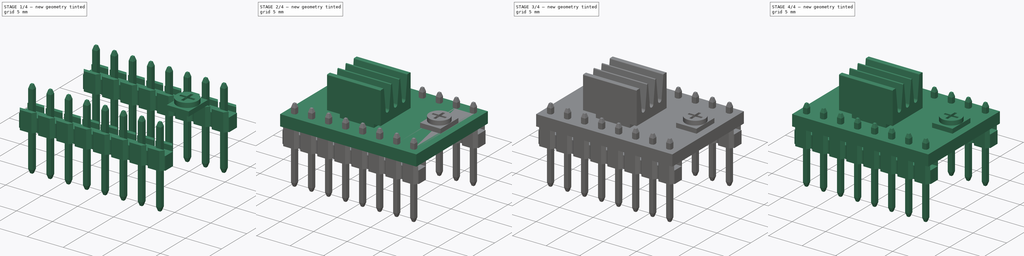
[diagram: build sequence overview — one tinted view per stage of 4, left to right]
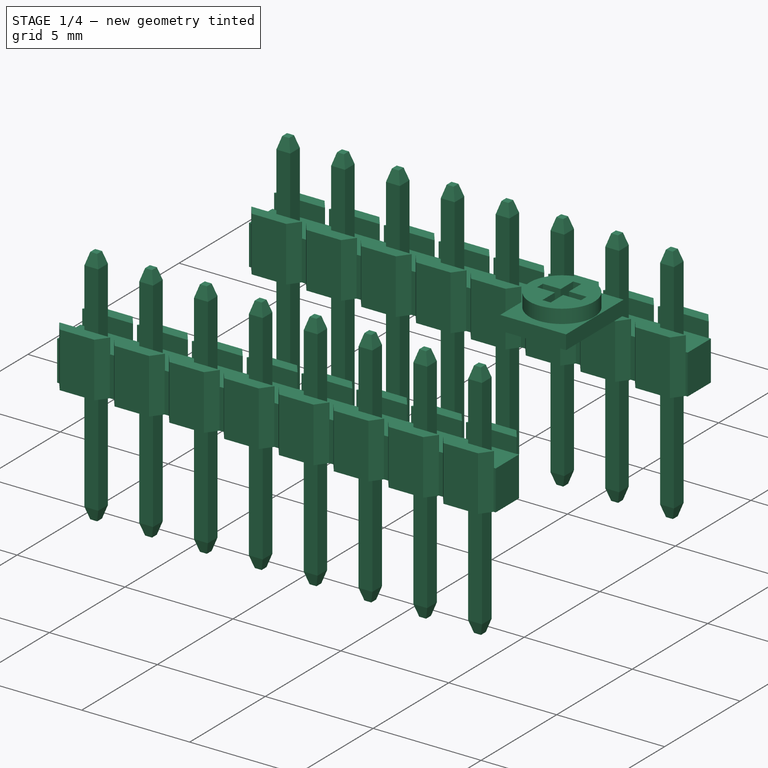
[diagram: stage 1 of 4 — iso view after this stage's code; geometry added in this stage tinted green]
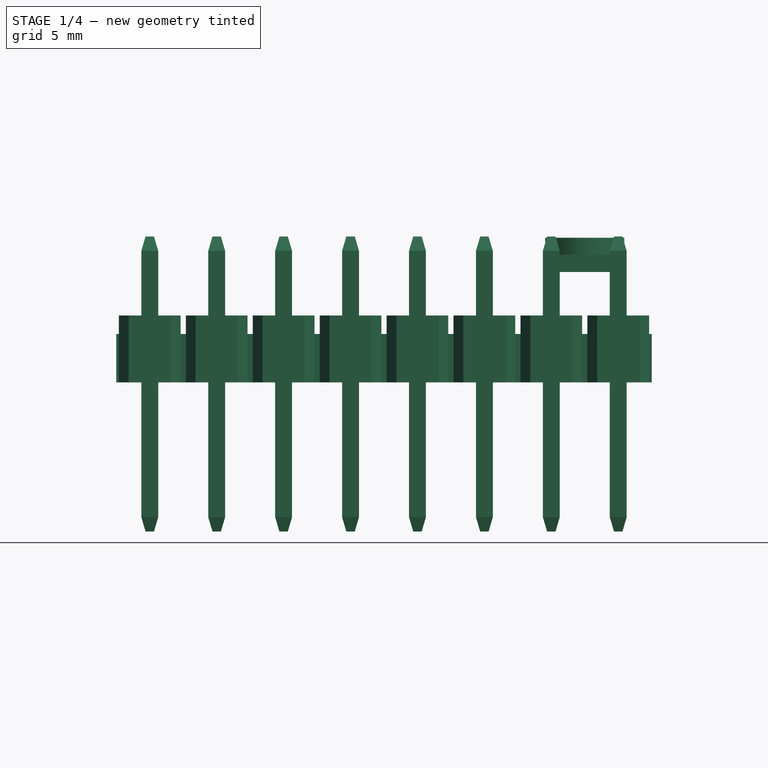
[diagram: stage 1 of 4 — front view after this stage's code; geometry added in this stage tinted green]
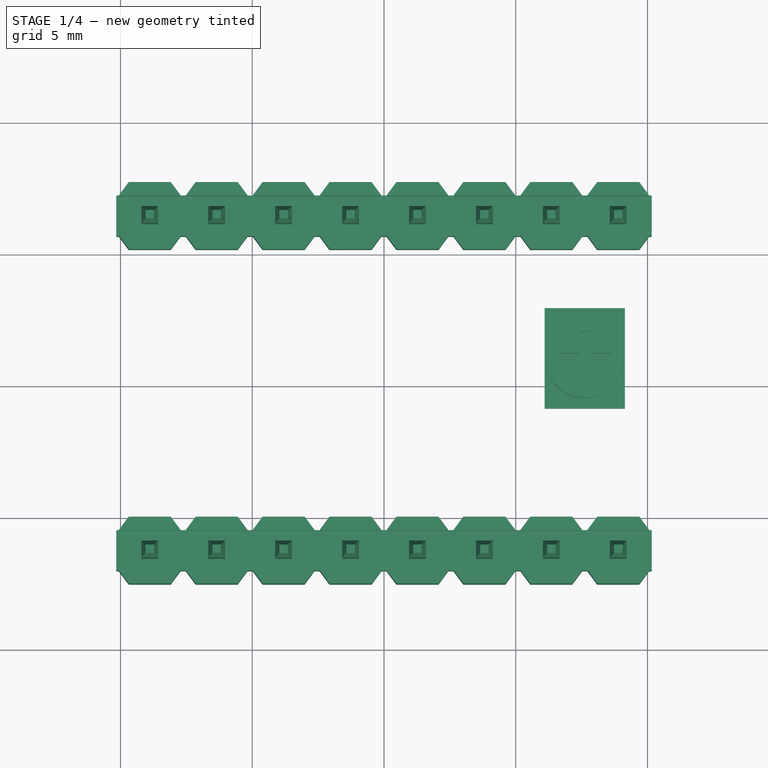
[diagram: stage 1 of 4 — top view after this stage's code; geometry added in this stage tinted green]
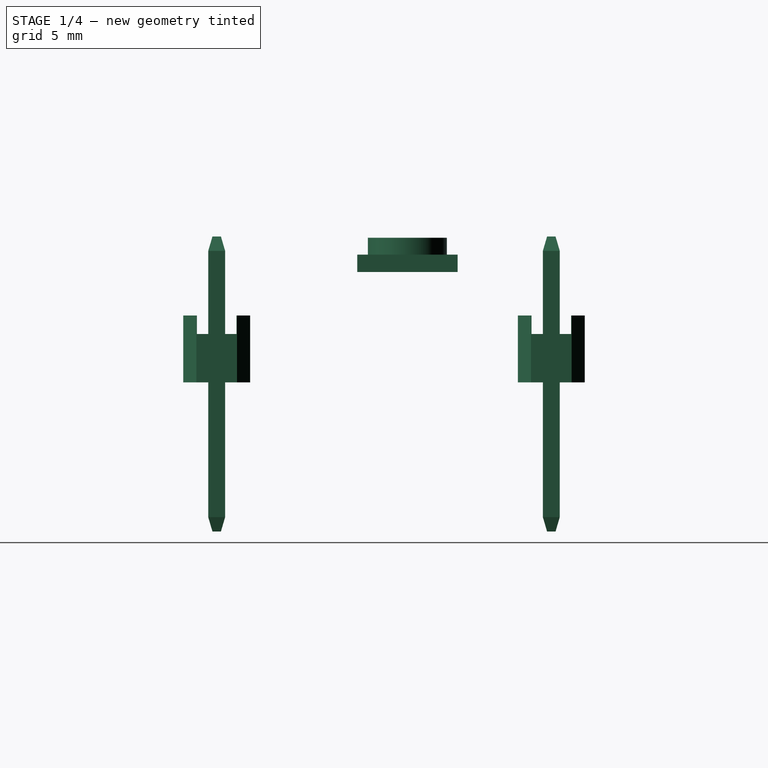
[diagram: stage 1 of 4 — right view after this stage's code; geometry added in this stage tinted green]
FCSTD DOCUMENT  (FreeCAD 0.19R17798 (Git))
Label: pololu-A4988
License: CC-BY 3.0
LicenseURL: http://creativecommons.org/licenses/by/3.0/
objects: Sketcher::SketchObject×6, Part::Feature×5, Part::Compound×5, PartDesign::Pad×4, App::DocumentObjectGroup×3, PartDesign::Pocket×2, PartDesign::LinearPattern×1
note: 29 computed .brp shape members not serialized (recipe doc carries the construction recipe); baked Part::Feature solids carry a one-line shape summary decoded from their .brp

FEATURE [App::DocumentObjectGroup] Group002  label="potentiometer-src"
  Group = -> [Pad002002,Pad002003,Pocket001,Compound]
FEATURE [Part::Compound] Compound001  label="pololu-potentiometer001"
  Placement = pos=(7.62,0.889,1.651) rot=(0,0,1;0rad)
FEATURE [Part::Feature] Pad002002002  label="heat-sink-8x6x5mm001"
  Placement = pos=(-1.0165,-1.7757,2.54) rot=(0.57735,0.57735,0.57735;2.0944rad)
  shape: bbox 8 x 6.38 x 4.83 mm, 22 faces (baked)
FEATURE [Part::Compound] Compound002  label="1x8-male-pin-header"
  Placement = pos=(-8.89,-6.35,0) rot=(1,0,0;3.14159rad)
FEATURE [Part::Compound] Compound003  label="1x8-male-pin-header001"
  Placement = pos=(-8.89,6.35,0) rot=(1,0,0;3.14159rad)
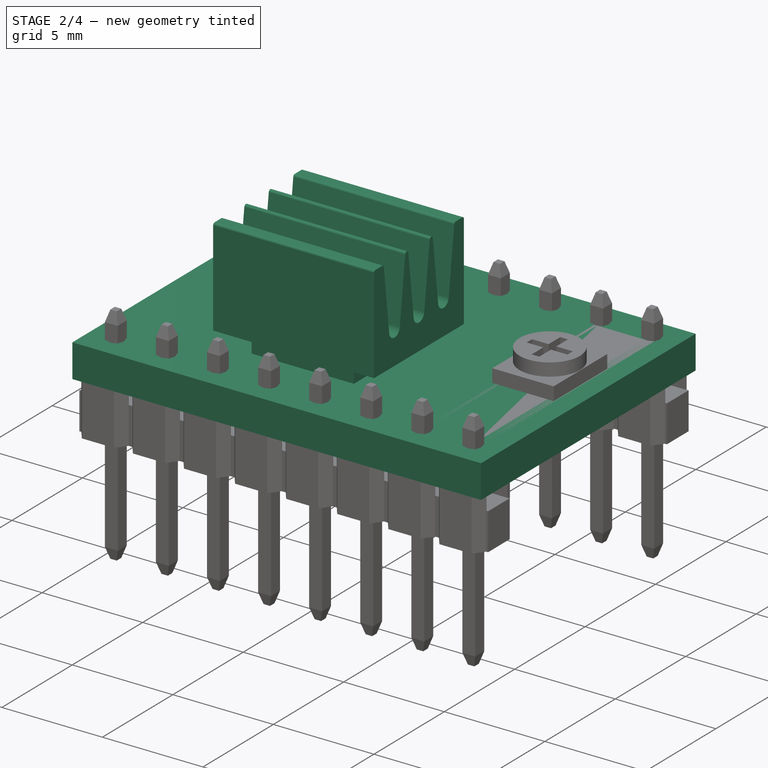
[diagram: stage 2 of 4 — iso view after this stage's code; geometry added in this stage tinted green]
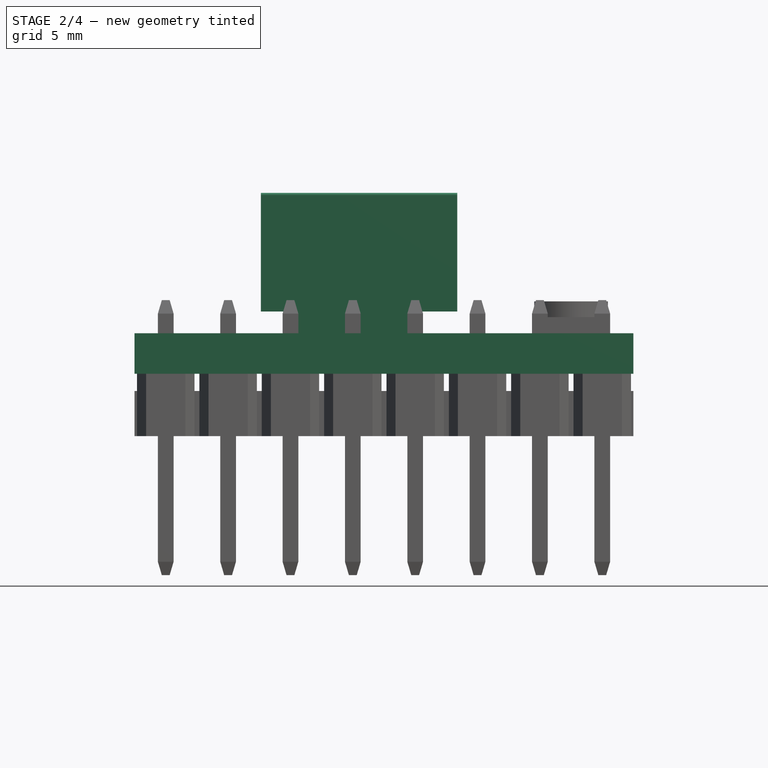
[diagram: stage 2 of 4 — front view after this stage's code; geometry added in this stage tinted green]
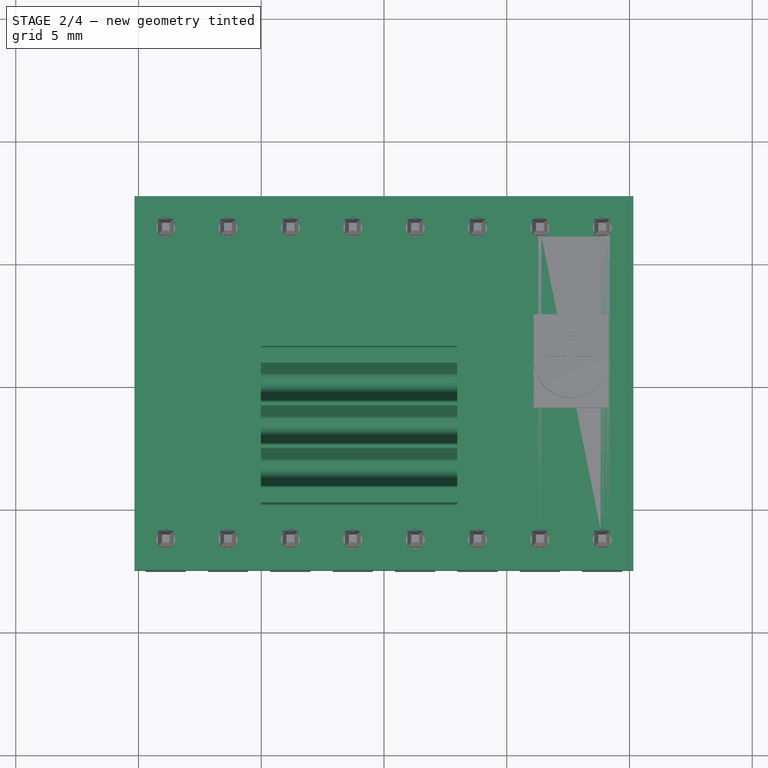
[diagram: stage 2 of 4 — top view after this stage's code; geometry added in this stage tinted green]
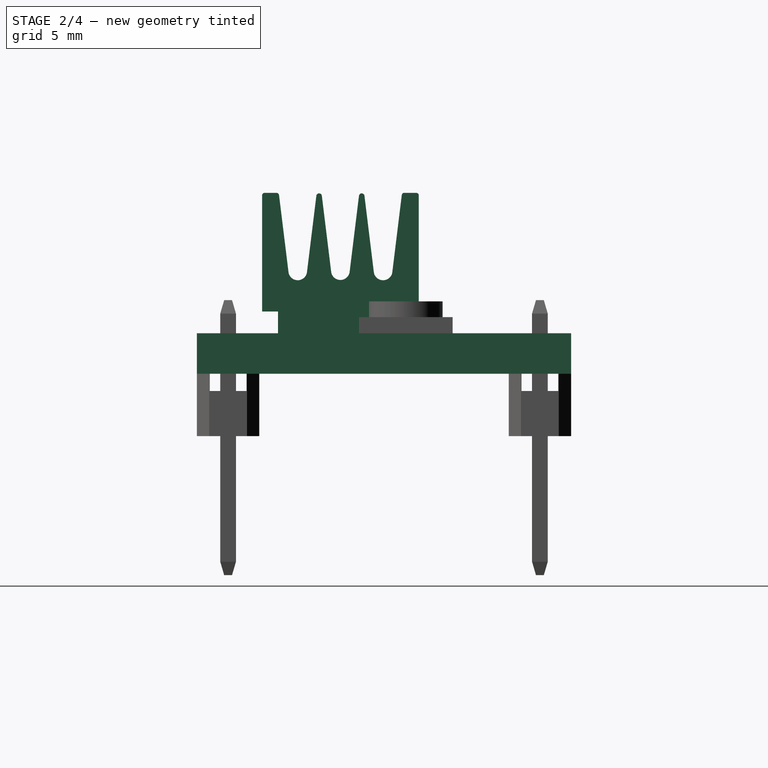
[diagram: stage 2 of 4 — right view after this stage's code; geometry added in this stage tinted green]
FEATURE [Sketcher::SketchObject] Sketch005  label="potentiometer-screw-main-sketch"
  MapMode = 5
  Placement = pos=(0,0,0.66) rot=(0,0,1;0rad)
  sketch-geometry (1):
    g0: Circle CenterX=0 CenterY=0 CenterZ=0 NormalX=0 NormalY=0 NormalZ=1 AngleXU=0 Radius=1.5
  constraints (2):
    c: Coincident(g0,g-1)
    c: Radius(g0) = 1.5
FEATURE [PartDesign::Pad] Pad002003  label="potentiometer-screw-main"
  Length = 0.64
  Length2 = 100
  Placement = pos=(0,0,0.66) rot=(0,0,1;0rad)
  Profile = -> Sketch005
  Type = 0
FEATURE [Part::Feature] Pad002002001  label="potentiometer-base001"
  shape: bbox 3.048 x 3.81 x 0.66 mm, 6 faces (baked)
FEATURE [Part::Feature] Pocket001001  label="potentiometer-screw-cross001"
  Placement = pos=(0,0,0.66) rot=(0,0,1;0rad)
  shape: bbox 3 x 3 x 0.64 mm, 15 faces (baked)
FEATURE [Part::Compound] Compound  label="pololu-potentiometer"
  Links = -> [Pad002002001,Pocket001001]
  Placement = pos=(7.62,0.889,1.651) rot=(0,0,1;0rad)
FEATURE [Part::Compound] Compound004  label="pololu-A500"
  Links = -> [LinearPattern001,Pad002001,Compound001,Pad002002002,Compound002,Compound003]
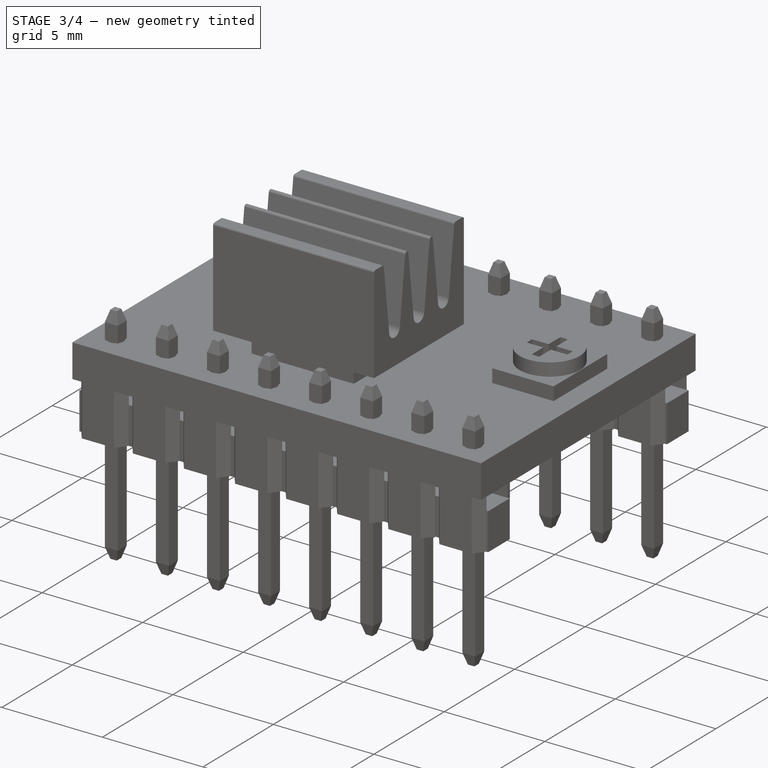
[diagram: stage 3 of 4 — iso view after this stage's code; geometry added in this stage tinted green]
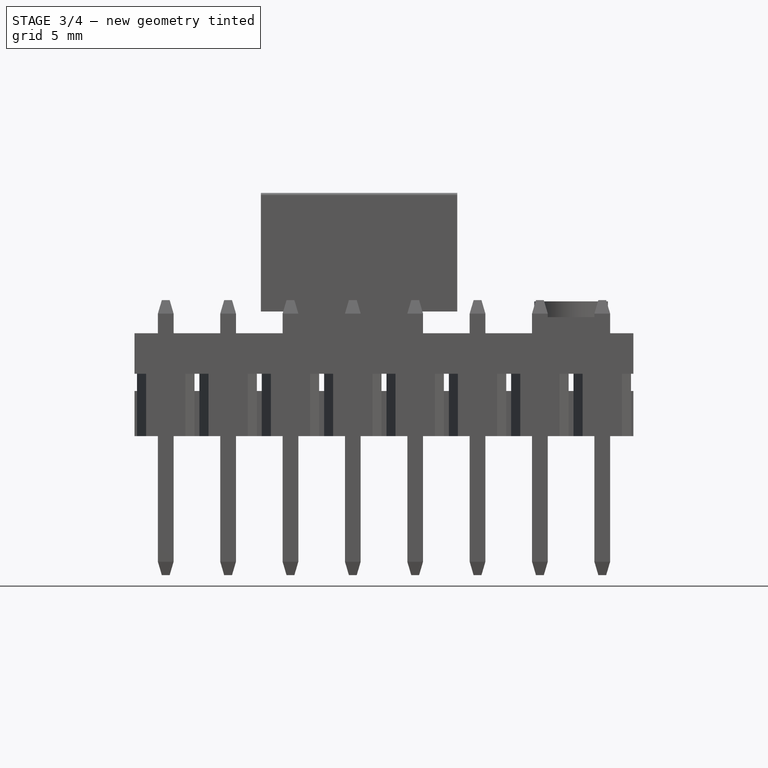
[diagram: stage 3 of 4 — front view after this stage's code; geometry added in this stage tinted green]
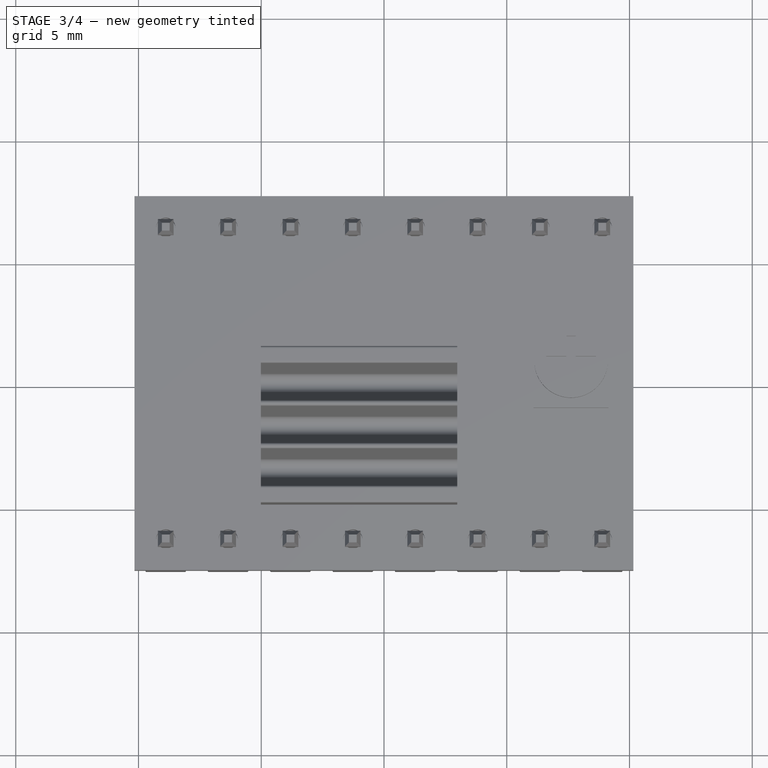
[diagram: stage 3 of 4 — top view after this stage's code; geometry added in this stage tinted green]
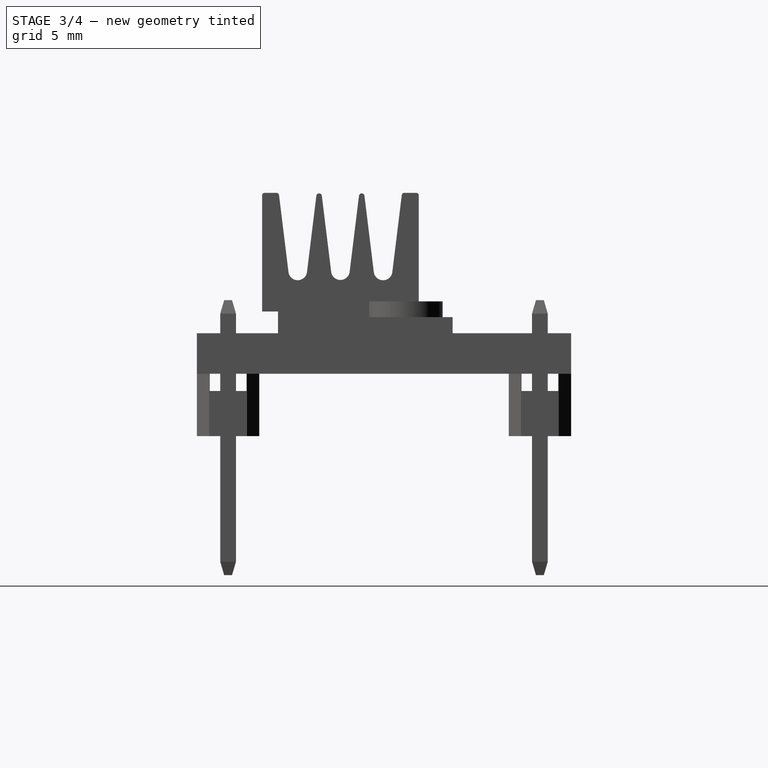
[diagram: stage 3 of 4 — right view after this stage's code; geometry added in this stage tinted green]
FEATURE [App::DocumentObjectGroup] Group  label="pololu-pcb-src"
  Group = -> [Pad001,Pocket,LinearPattern]
FEATURE [Part::Feature] LinearPattern001  label="pololu-pcb"
  shape: bbox 20.32 x 15.24 x 1.65 mm, 22 faces (baked)
FEATURE [Sketcher::SketchObject] Sketch003  label="drv-chip-sketch"
  MapMode = 5
  Placement = pos=(-1.016,-1.778,1.651) rot=(0,0,1;0rad)
  sketch-geometry (4):
    g0: LineSegment StartX=-2.54 StartY=2.54 StartZ=0 EndX=2.54 EndY=2.54 EndZ=0
    g1: LineSegment StartX=2.54 StartY=2.54 StartZ=0 EndX=2.54 EndY=-2.54 EndZ=0
    g2: LineSegment StartX=2.54 StartY=-2.54 StartZ=0 EndX=-2.54 EndY=-2.54 EndZ=0
    g3: LineSegment StartX=-2.54 StartY=-2.54 StartZ=0 EndX=-2.54 EndY=2.54 EndZ=0
  constraints (11):
    c: Coincident(g0,g1)
    c: Coincident(g1,g2)
    c: Coincident(g2,g3)
    c: Coincident(g3,g0)
    c: Horizontal(g0)
    c: Horizontal(g2)
    c: Vertical(g1)
    c: Vertical(g3)
    c: Symmetric(g0,g1,g-1)
    c: Equal(g3,g0)
    c: DistanceX(g0) = 5.08
FEATURE [PartDesign::Pad] Pad002  label="drv-chip"
  Length = 0.89
  Length2 = 100
  Placement = pos=(-1.016,-1.778,1.651) rot=(0,0,1;0rad)
  Profile = -> Sketch003
  Type = 0
FEATURE [App::DocumentObjectGroup] Group001  label="drv-chip-src"
  Group = -> [Pad002]
FEATURE [Part::Feature] Pad002001  label="drv-chip001"
  Placement = pos=(-1.016,-1.778,1.651) rot=(0,0,1;0rad)
  shape: bbox 5.08 x 5.08 x 0.89 mm, 6 faces (baked)
FEATURE [Sketcher::SketchObject] Sketch004  label="potentiometer-base-sketch"
  MapMode = 5
  sketch-geometry (4):
    g0: LineSegment StartX=-1.524 StartY=1.905 StartZ=0 EndX=1.524 EndY=1.905 EndZ=0
    g1: LineSegment StartX=1.524 StartY=1.905 StartZ=0 EndX=1.524 EndY=-1.905 EndZ=0
    g2: LineSegment StartX=1.524 StartY=-1.905 StartZ=0 EndX=-1.524 EndY=-1.905 EndZ=0
    g3: LineSegment StartX=-1.524 StartY=-1.905 StartZ=0 EndX=-1.524 EndY=1.905 EndZ=0
  constraints (11):
    c: Coincident(g0,g1)
    c: Coincident(g1,g2)
    c: Coincident(g2,g3)
    c: Coincident(g3,g0)
    c: Horizontal(g0)
    c: Horizontal(g2)
    c: Vertical(g1)
    c: Vertical(g3)
    c: Symmetric(g0,g1,g-1)
    c: DistanceX(g2) = -3.048
    c: DistanceY(g3) = 3.81
FEATURE [PartDesign::Pad] Pad002002  label="potentiometer-base"
  Length = 0.66
  Length2 = 100
  Profile = -> Sketch004
  Type = 0
FEATURE [Sketcher::SketchObject] Sketch006  label="potentiometer-screw-cross-sketch"
  MapMode = 5
  Placement = pos=(0,0,1.3) rot=(0,0,1;0rad)
  Support = -> [Pad002003]
  sketch-geometry (12):
    g0: LineSegment StartX=0.19 StartY=1.015 StartZ=0 EndX=-0.19 EndY=1.015 EndZ=0
    g1: LineSegment StartX=-0.19 StartY=1.015 StartZ=0 EndX=-0.19 EndY=0.19 EndZ=0
    g2: LineSegment StartX=-0.19 StartY=0.19 StartZ=0 EndX=-1.015 EndY=0.19 EndZ=0
    g3: LineSegment StartX=-1.015 StartY=0.19 StartZ=0 EndX=-1.015 EndY=-0.19 EndZ=0
    g4: LineSegment StartX=-1.015 StartY=-0.19 StartZ=0 EndX=-0.19 EndY=-0.19 EndZ=0
    g5: LineSegment StartX=-0.19 StartY=-0.19 StartZ=0 EndX=-0.19 EndY=-1.015 EndZ=0
    g6: LineSegment StartX=-0.19 StartY=-1.015 StartZ=0 EndX=0.19 EndY=-1.015 EndZ=0
    g7: LineSegment StartX=0.19 StartY=-1.015 StartZ=0 EndX=0.19 EndY=-0.19 EndZ=0
    g8: LineSegment StartX=0.19 StartY=-0.19 StartZ=0 EndX=1.015 EndY=-0.19 EndZ=0
    g9: LineSegment StartX=1.015 StartY=-0.19 StartZ=0 EndX=1.015 EndY=0.19 EndZ=0
    g10: LineSegment StartX=1.015 StartY=0.19 StartZ=0 EndX=0.19 EndY=0.19 EndZ=0
    g11: LineSegment StartX=0.19 StartY=0.19 StartZ=0 EndX=0.19 EndY=1.015 EndZ=0
  constraints (34):
    c: Coincident(g0,g1)
    c: Coincident(g1,g2)
    c: Coincident(g2,g3)
    c: Vertical(g1)
    c: Equal(g2,g1)
    c: Vertical(g3)
    c: Horizontal(g0)
    c: Equal(g3,g0)
    c: Symmetric(g0,g0,g-2)
    c: Symmetric(g2,g3,g-1)
    c: DistanceX(g0) = -0.38
    c: DistanceX(g2) = -0.825
    c: Coincident(g4,g5)
    c: Coincident(g5,g6)
    c: Coincident(g6,g7)
    c: Coincident(g7,g8)
    c: Coincident(g8,g9)
    c: Coincident(g9,g10)
    c: Coincident(g10,g11)
    c: Vertical(g11)
    c: Vertical(g9)
    c: Vertical(g7)
    c: Vertical(g5)
    c: Horizontal(g10)
    c: Horizontal(g8)
    c: Horizontal(g6)
    c: Horizontal(g4)
    c: Coincident(g4,g3)
    c: Coincident(g11,g0)
    c: Symmetric(g10,g1,g-2)
    c: Symmetric(g9,g2,g-2)
    c: Symmetric(g7,g4,g-2)
    c: Symmetric(g1,g4,g-1)
    c: Symmetric(g6,g0,g-1)
FEATURE [PartDesign::Pocket] Pocket001  label="potentiometer-screw-cross"
  Length = 5
  Length2 = 100
  Placement = pos=(0,0,0.66) rot=(0,0,1;0rad)
  Profile = -> Sketch006
  Type = 1
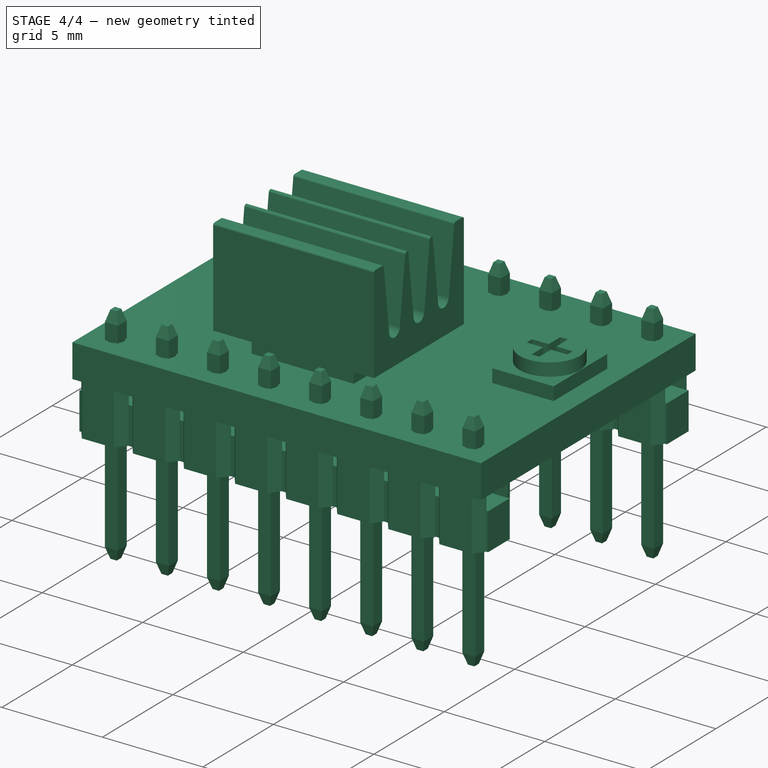
[diagram: stage 4 of 4 — iso view after this stage's code; geometry added in this stage tinted green]
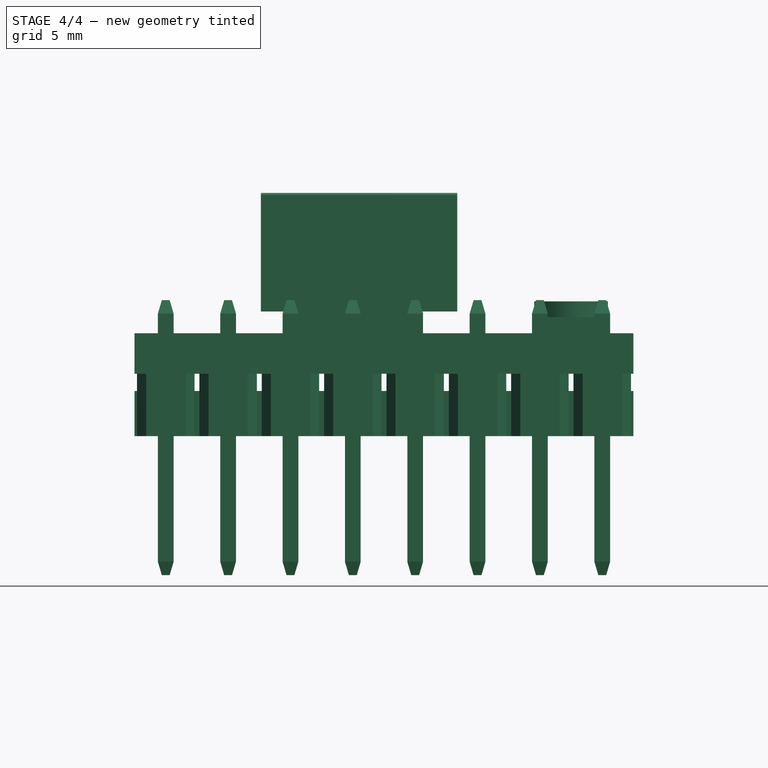
[diagram: stage 4 of 4 — front view after this stage's code; geometry added in this stage tinted green]
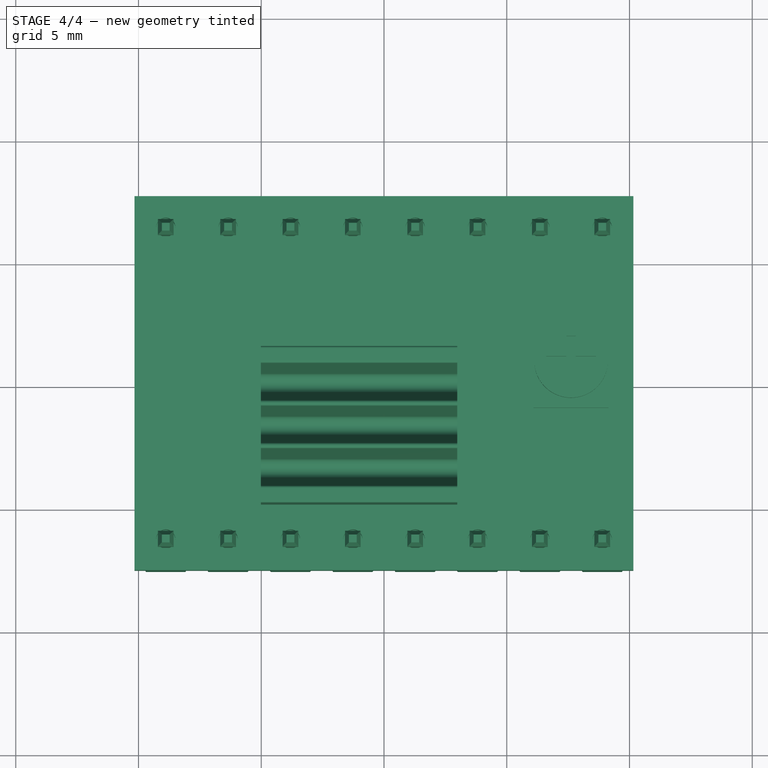
[diagram: stage 4 of 4 — top view after this stage's code; geometry added in this stage tinted green]
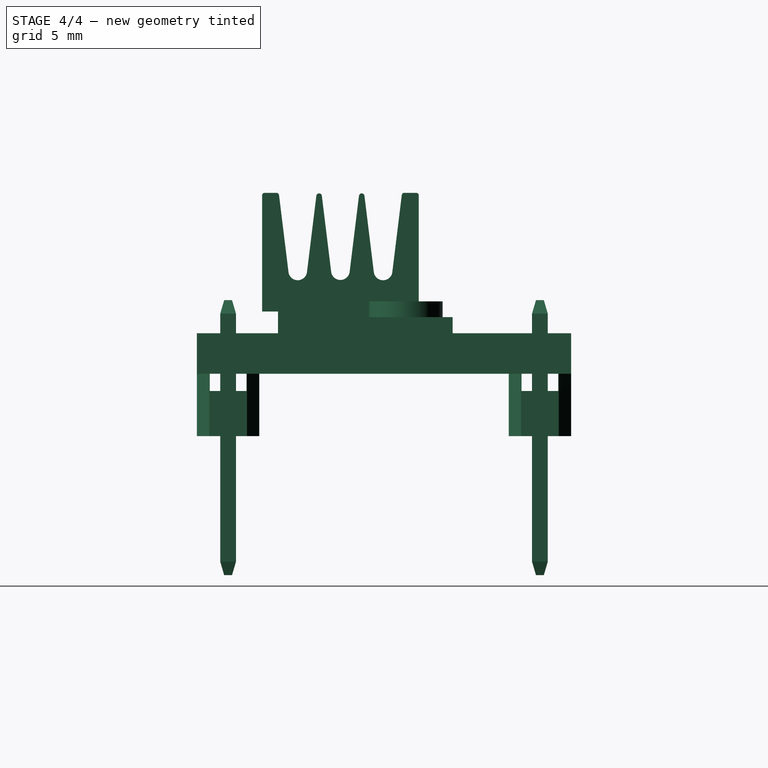
[diagram: stage 4 of 4 — right view after this stage's code; geometry added in this stage tinted green]
FEATURE [Sketcher::SketchObject] Sketch001  label="pololu-pcb-main-sketch"
  MapMode = 5
  sketch-geometry (4):
    g0: LineSegment StartX=-10.16 StartY=7.62 StartZ=0 EndX=10.16 EndY=7.62 EndZ=0
    g1: LineSegment StartX=10.16 StartY=7.62 StartZ=0 EndX=10.16 EndY=-7.62 EndZ=0
    g2: LineSegment StartX=10.16 StartY=-7.62 StartZ=0 EndX=-10.16 EndY=-7.62 EndZ=0
    g3: LineSegment StartX=-10.16 StartY=-7.62 StartZ=0 EndX=-10.16 EndY=7.62 EndZ=0
  constraints (11):
    c: Coincident(g0,g1)
    c: Coincident(g1,g2)
    c: Coincident(g2,g3)
    c: Coincident(g3,g0)
    c: Horizontal(g0)
    c: Horizontal(g2)
    c: Vertical(g1)
    c: Vertical(g3)
    c: Symmetric(g0,g1,g-1)
    c: DistanceX(g0) = 20.32
    c: DistanceY(g3) = 15.24
FEATURE [PartDesign::Pad] Pad001  label="pololu-pcb-main"
  Length = 1.65
  Length2 = 100
  Profile = -> Sketch001
  Type = 0
FEATURE [Sketcher::SketchObject] Sketch002  label="pololu-pcb-pad-master-sketch"
  MapMode = 5
  Placement = pos=(0,0,1.65) rot=(0,0,1;0rad)
  Support = -> [Pad001]
  sketch-geometry (2):
    g0: Circle CenterX=-8.89 CenterY=-6.35 CenterZ=0 NormalX=0 NormalY=0 NormalZ=1 AngleXU=0 Radius=0.39
    g1: Circle CenterX=-8.89 CenterY=6.35 CenterZ=0 NormalX=0 NormalY=0 NormalZ=1 AngleXU=0 Radius=0.39
  constraints (5):
    c: Radius(g0) = 0.39
    c: Equal(g0,g1)
    c: DistanceY(g-1,g0) = -6.35
    c: DistanceX(g-1,g0) = -8.89
    c: Symmetric(g1,g0,g-1)
FEATURE [PartDesign::Pocket] Pocket  label="pololu-pcb-pad-master"
  Length = 5
  Length2 = 100
  Profile = -> Sketch002
  Type = 1
FEATURE [PartDesign::LinearPattern] LinearPattern  label="pololu-pcb-pads"
  Direction = -> Sketch002 [H_Axis]
  Length = 17.78
  Occurrences = 8
  Originals = -> [Pocket]
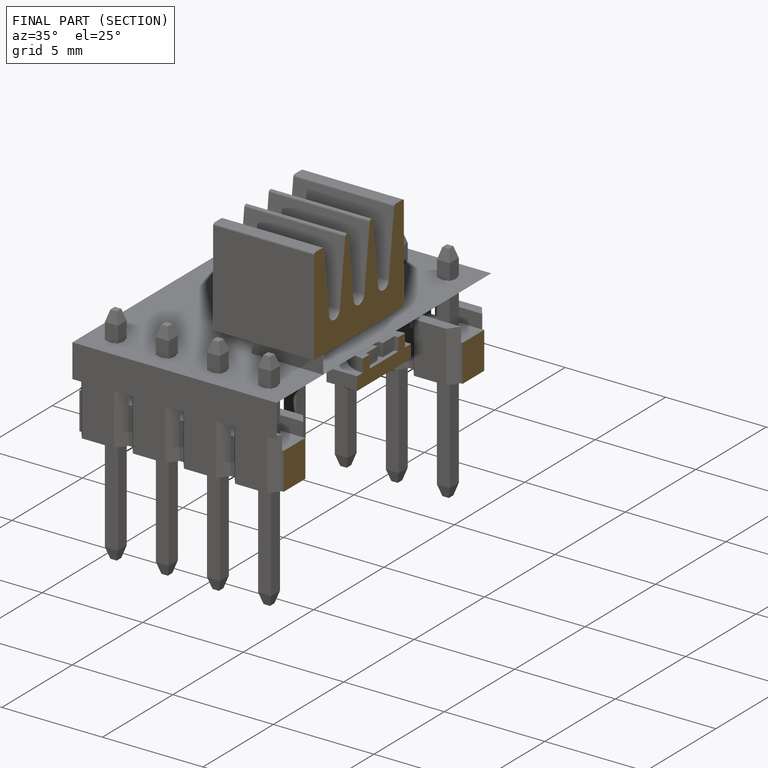
[diagram: finished part — half-section view (interior)]
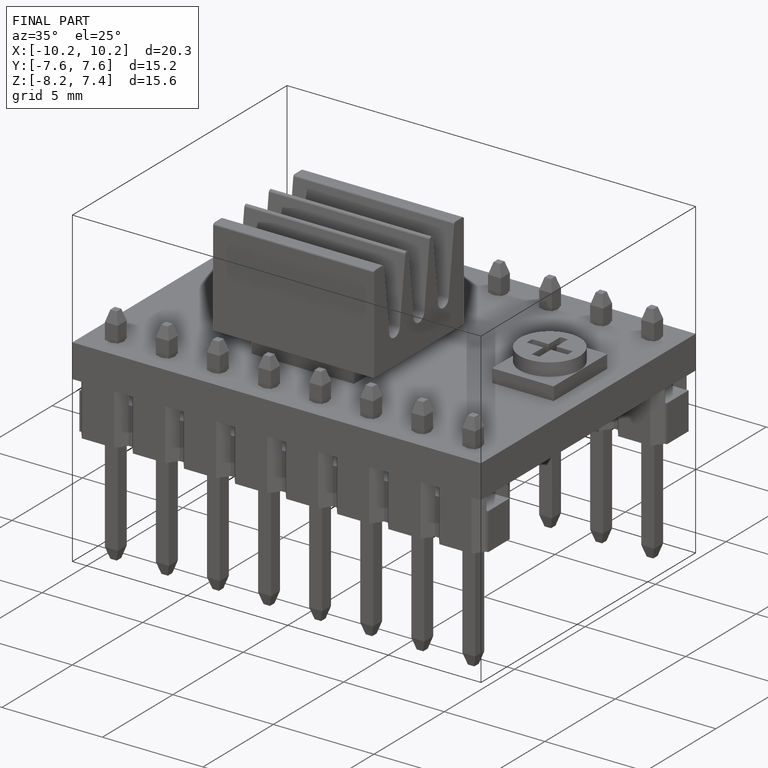
[diagram: finished part — iso view with bounding-box wireframe]
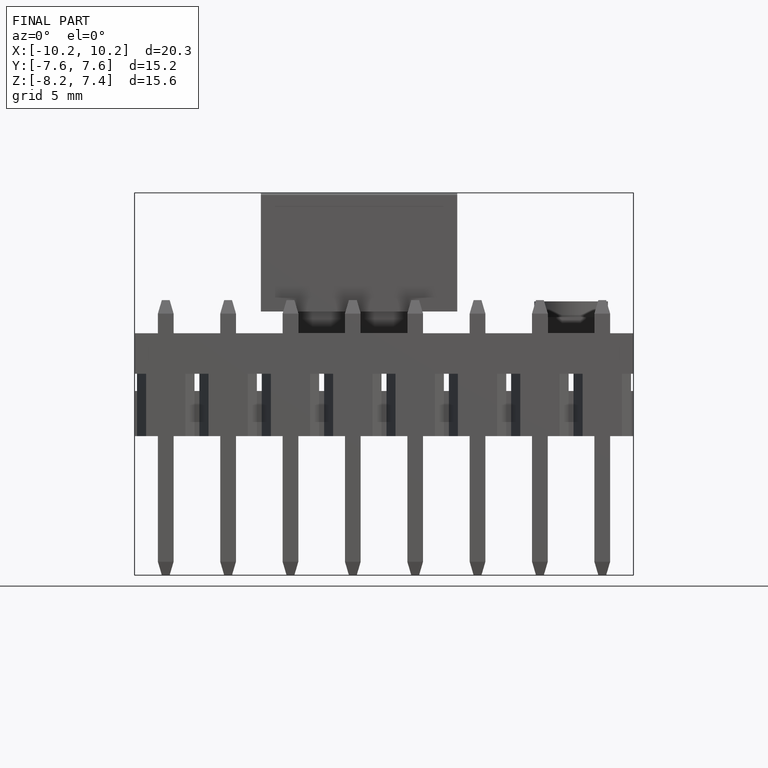
[diagram: finished part — front view with bounding-box wireframe]
